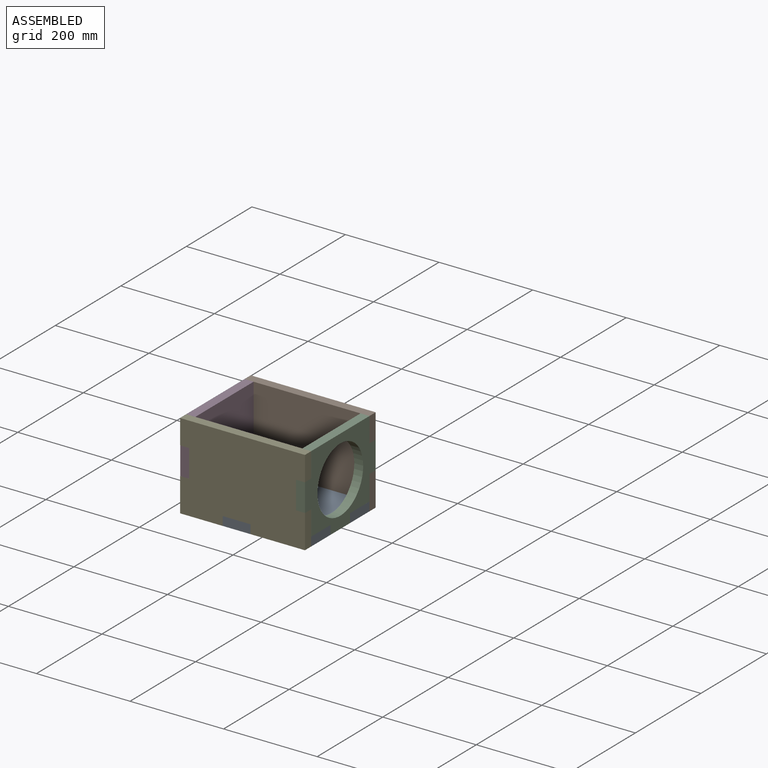
[diagram: assembled view]
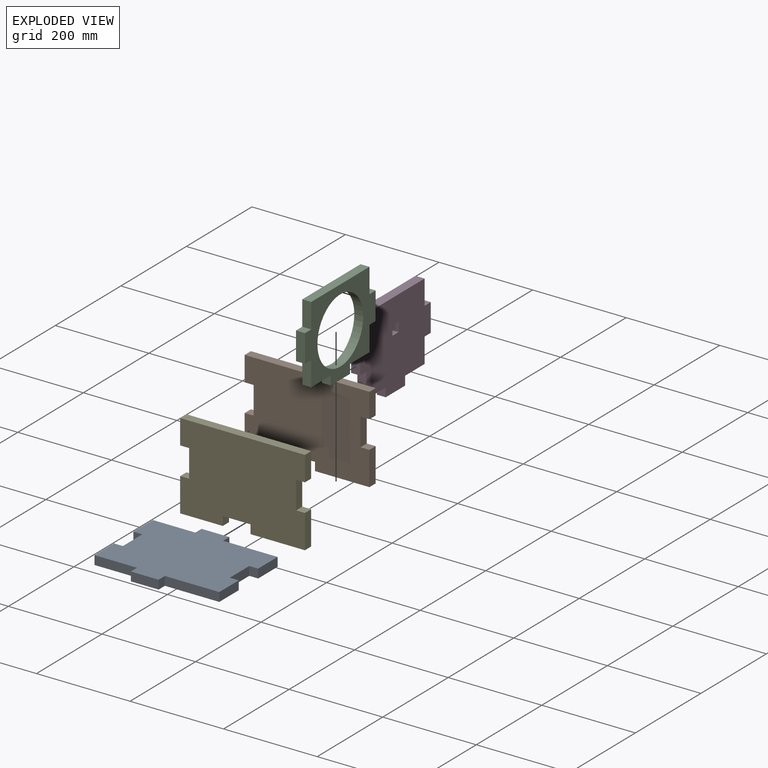
[diagram: exploded view]
GUIDED TOUR — MATED ASSEMBLY (Onshape document 8300660205ef236f21a5e171, AutoMate assembly 8300660205ef236f21a5e171_18b83a9f89c25a5f701d8ad7_d6cc774d2615e0332f5ea90b_default)

This assembly has 5 components, labeled P0..P4 below (a component is one placed occurrence of a part; the same part can appear more than once), held together by 4 mates. A mate is a constraint between two components; its type names the relative motion it leaves free:
  FASTENED — locks the two components together rigidly (no relative motion).
Axis/direction vectors are unit vectors and 'through' points are millimeter coordinates, both in the assembly's world frame.

MATES
  1. FASTENED "Fastened 1": P3 <-> P0, direction (0.000, 1.000, 0.000) through (-167.31, 15.33, -1.70) mm
  2. FASTENED "Fastened 2": P4 <-> P0, direction (-1.000, 0.000, 0.000) through (-76.29, -122.34, -1.70) mm
  3. FASTENED "Fastened 3": P1 <-> P0, direction (1.000, 0.000, 0.000) through (-76.29, 74.51, -1.70) mm
  4. FASTENED "Fastened 4": P2 <-> P0, direction (0.000, 1.000, 0.000) through (99.39, -43.98, -1.70) mm

ASSEMBLY ORDER
  1. P4 — the base component [order verified]
  2. P0 [order verified]
  3. P1 [order verified]
  4. P2 [order verified]
  5. P3 [order verified]
Order-tag legend:
  [order verified] — this step's position reverses a verified removal order: the component was checked to insert without passing through the ones already placed.

Of the 5 components, 5 carry the full construction recipe — the FeatureScript program that regenerates the part's solid from scratch; the rest are supplied as boundary geometry only.
Each toured component is shown spotlighted twice — in the assembled view, then in the exploded view, where a leader line traces a displaced component back to its assembled socket (saturated green if recipe-attached, orange if geometry-only; every other component desaturated gray) — followed by its recipe or geometry summary and the mates that hold it.
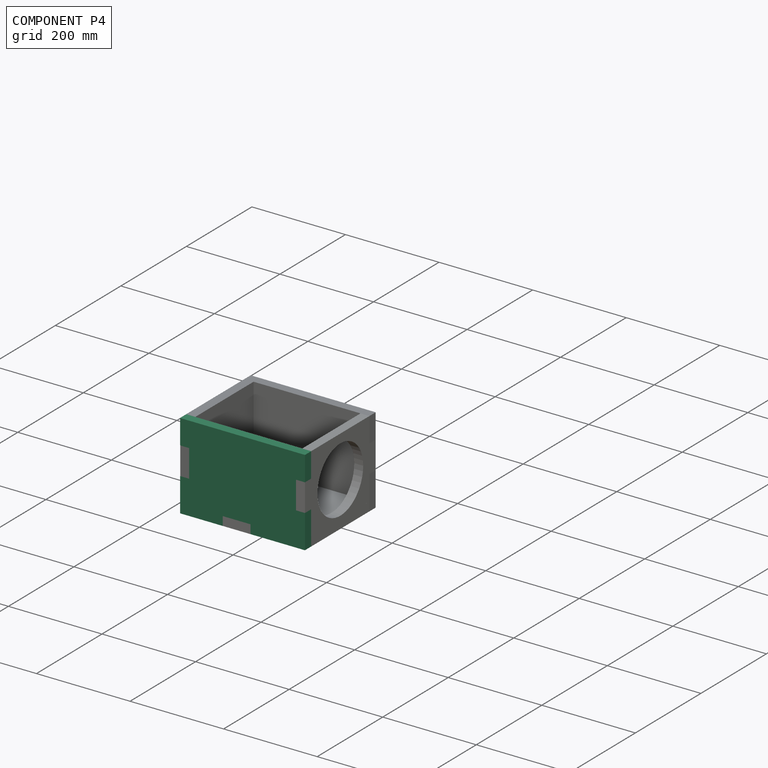
[diagram: component P4 — assembled]
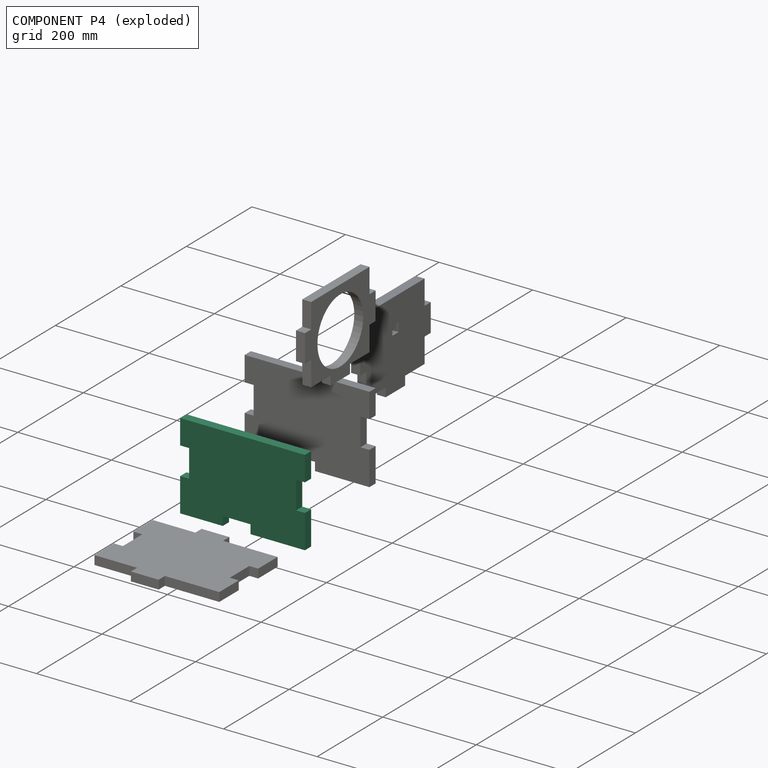
[diagram: component P4 — exploded]
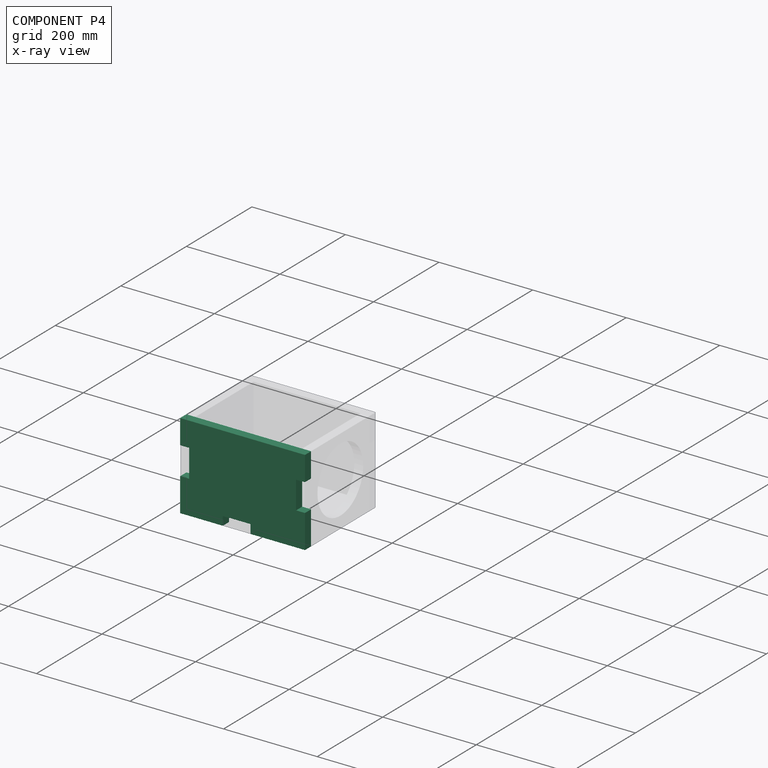
[diagram: component P4 — x-ray view]
COMPONENT P4 — same part as P1 (CADFS 00915573); its construction recipe is shown at P1.
Held by: FASTENED mate "Fastened 2" to P0.
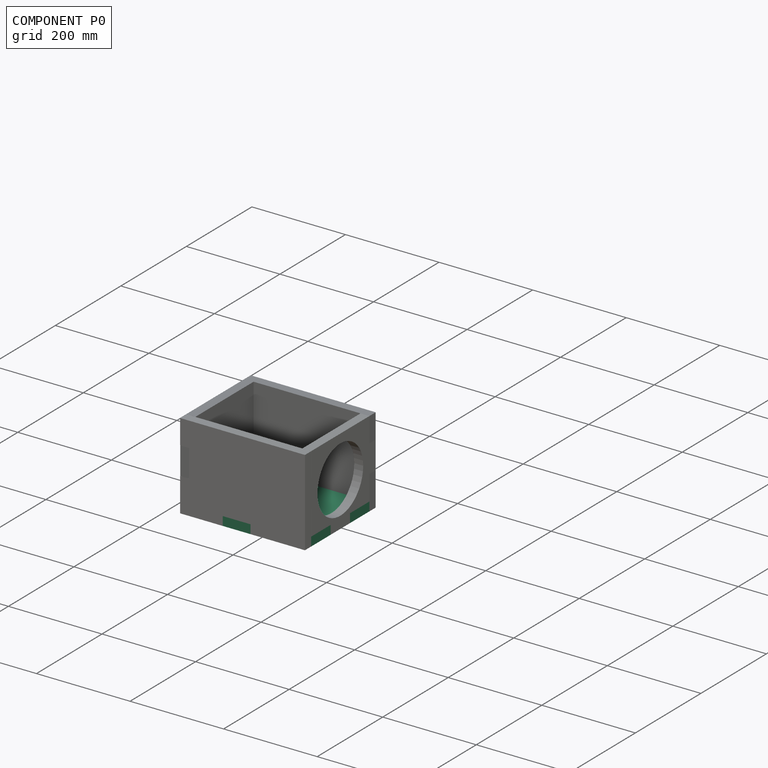
[diagram: component P0 — assembled]
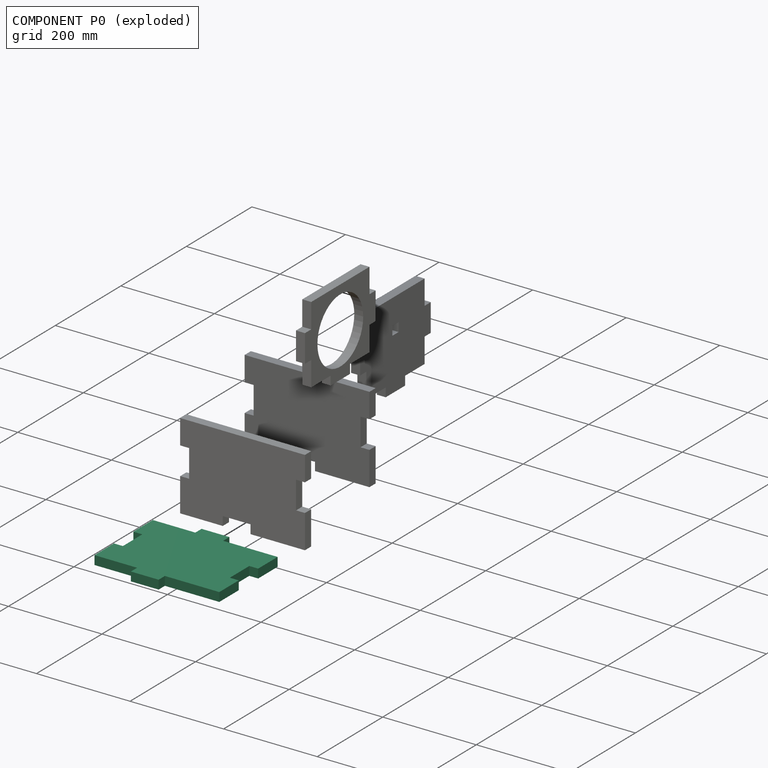
[diagram: component P0 — exploded]
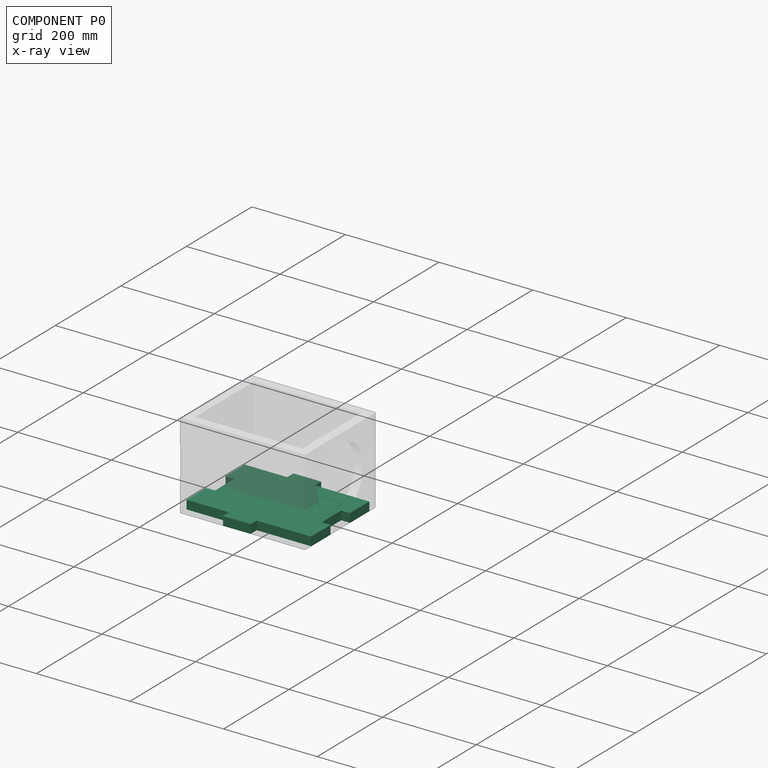
[diagram: component P0 — x-ray view]
COMPONENT P0 — recipe-attached (CADFS 00915570, mesh-verified: the recipe's output STEP matches this component's geometry to below the mesh-comparison resolution (tessellation chordal tolerance ~0.515 mm)).
Held by: FASTENED mate "Fastened 1" to P3; FASTENED mate "Fastened 2" to P4; FASTENED mate "Fastened 3" to P1; FASTENED mate "Fastened 4" to P2.
Construction recipe (FeatureScript — the CAD program that rebuilds this solid; sketch coordinates are in the units given by the * unit suffixes, e.g. mm):

FeatureScript 1511;
import(path : "onshape/std/geometry.fs", version : "1511.0");
import(path : "onshape/std/common.fs", version : "1511.0");
const mm = millimeter;
const VERTEX = EntityType.VERTEX;
const EDGE = EntityType.EDGE;
const FACE = EntityType.FACE;
const BODY = EntityType.BODY;
function v(x, y){return vector(x, y);}
function OD(order){return orderDisambiguation(order);}
function OSD(set){return originalSetDisambiguation(set);}
function TD(topology){return topologyDisambiguation(topology);}
function TDD(query){return trueDependencyDisambiguation(query);}
function sQuery(a, b, c) {return sketchEntityQuery(a, b, c);}

annotation { "Feature Type Name" : "Feature", "Feature Type Description" : "" }
export const myFeature = defineFeature(function(context is Context, id is Id, definition is map)
    precondition{}
    {
        {
            var Q0;
            Q0=qCreatedBy(makeId("Top.planeOp"),FACE);
            var sketch = newSketch(context, id + "F0", { "sketchPlane" : qUnion([Q0])});
            skPoint(sketch, "E0.middle", {"position": v(0, 0) * mm});
            skLineSegment(sketch, "E1", {"start": v(-101.6, 29.72) * mm, "end": v(-120.65, 29.72) * mm});
            skLineSegment(sketch, "E2.bottom", {"start": v(-120.65, 29.72) * mm, "end": v(-101.6, 29.72) * mm});
            skLineSegment(sketch, "E2.top", {"start": v(-120.65, 88.9) * mm, "end": v(-101.6, 88.9) * mm});
            skLineSegment(sketch, "E2.left", {"start": v(-120.65, 29.72) * mm, "end": v(-120.65, 88.9) * mm});
            skLineSegment(sketch, "E3", {"start": v(-101.6, -29.6) * mm, "end": v(-120.65, -29.6) * mm});
            skLineSegment(sketch, "E4.bottom", {"start": v(-101.6, -88.9) * mm, "end": v(-120.65, -88.9) * mm});
            skLineSegment(sketch, "E4.right", {"start": v(-120.65, -88.9) * mm, "end": v(-120.65, -29.6) * mm});
            skLineSegment(sketch, "E5.bottom", {"start": v(101.6, -88.9) * mm, "end": v(120.65, -88.9) * mm});
            skLineSegment(sketch, "E6", {"start": v(-101.6, 29.72) * mm, "end": v(-101.6, -29.6) * mm});
            skLineSegment(sketch, "E7.top", {"start": v(120.65, 88.9) * mm, "end": v(101.6, 88.9) * mm});
            skLineSegment(sketch, "E8", {"start": v(0, 107.95) * mm, "end": v(29.63, 107.95) * mm});
            skLineSegment(sketch, "E9", {"start": v(0, 107.95) * mm, "end": v(-29.63, 107.95) * mm});
            skLineSegment(sketch, "E10", {"start": v(-29.63, 107.95) * mm, "end": v(-29.63, 88.9) * mm});
            skLineSegment(sketch, "E11.bottom", {"start": v(29.63, 107.95) * mm, "end": v(-29.63, 107.95) * mm});
            skLineSegment(sketch, "E11.left", {"start": v(29.63, 107.95) * mm, "end": v(29.63, 88.9) * mm});
            skLineSegment(sketch, "E12", {"start": v(-101.6, 88.9) * mm, "end": v(-29.63, 88.9) * mm});
            skLineSegment(sketch, "E13", {"start": v(29.63, 88.9) * mm, "end": v(101.6, 88.9) * mm});
            skLineSegment(sketch, "E14", {"start": v(-29.63, -88.9) * mm, "end": v(-29.63, -107.95) * mm});
            skLineSegment(sketch, "E15.bottom", {"start": v(-29.63, -107.95) * mm, "end": v(29.63, -107.95) * mm});
            skLineSegment(sketch, "E15.left", {"start": v(-29.63, -107.95) * mm, "end": v(-29.63, -88.9) * mm});
            skLineSegment(sketch, "E15.right", {"start": v(29.63, -107.95) * mm, "end": v(29.63, -88.9) * mm});
            skLineSegment(sketch, "E16", {"start": v(-101.6, -88.9) * mm, "end": v(-29.63, -88.9) * mm});
            skLineSegment(sketch, "E17", {"start": v(29.63, -88.9) * mm, "end": v(101.6, -88.9) * mm});
            skLineSegment(sketch, "E18", {"start": v(120.65, 88.9) * mm, "end": v(146.05, 88.9) * mm});
            skLineSegment(sketch, "E19", {"start": v(146.05, 29.72) * mm, "end": v(146.05, 88.9) * mm});
            skLineSegment(sketch, "E20", {"start": v(146.05, -29.6) * mm, "end": v(146.05, -88.9) * mm});
            skLineSegment(sketch, "E21", {"start": v(146.05, -88.9) * mm, "end": v(120.65, -88.9) * mm});
            skLineSegment(sketch, "E22", {"start": v(127, 29.72) * mm, "end": v(127, -29.6) * mm});
            skLineSegment(sketch, "E23", {"start": v(127, -29.6) * mm, "end": v(146.05, -29.6) * mm});
            skLineSegment(sketch, "E24", {"start": v(127, 29.72) * mm, "end": v(146.05, 29.72) * mm});
            skSolve(sketch);
        }
        {
            var Q0;
            Q0 = qSketchRegion(id + "F0", true);
            extrude(context, id + "F1", {"entities" : qUnion([Q0]), "depth" : 19.05 * mm, "offsetDistance" : 25.4 * mm});
        }
    });
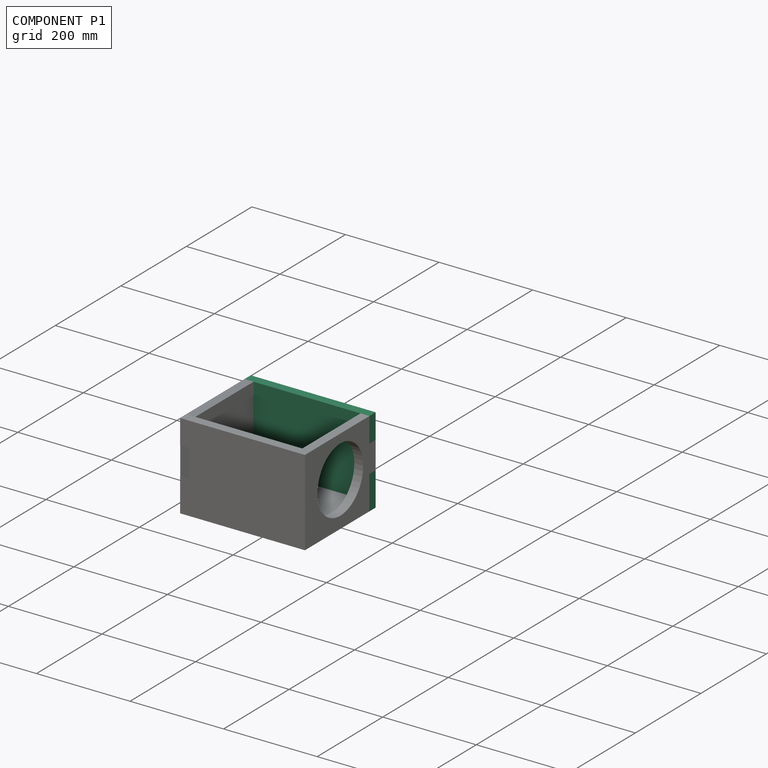
[diagram: component P1 — assembled]
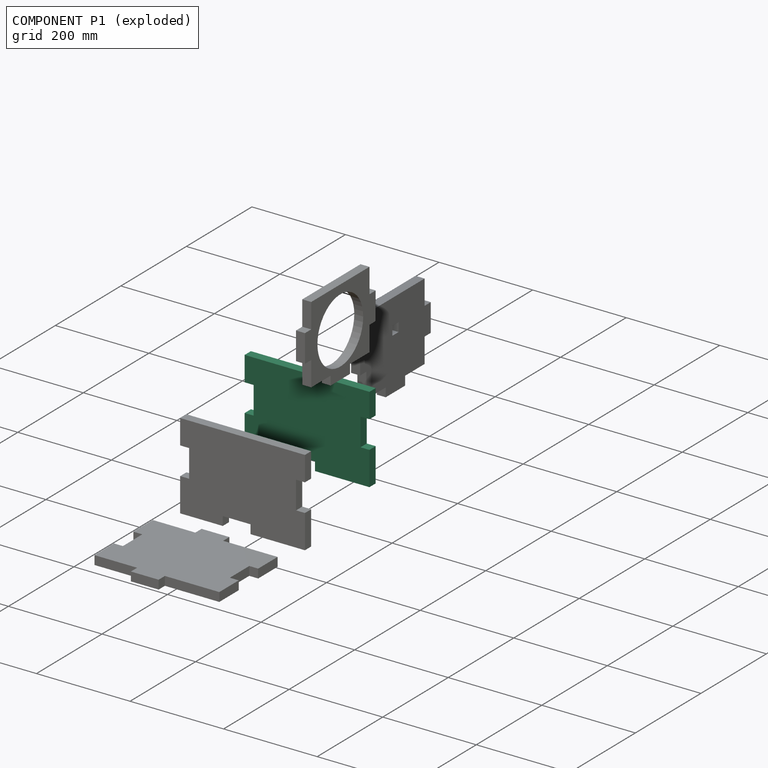
[diagram: component P1 — exploded]
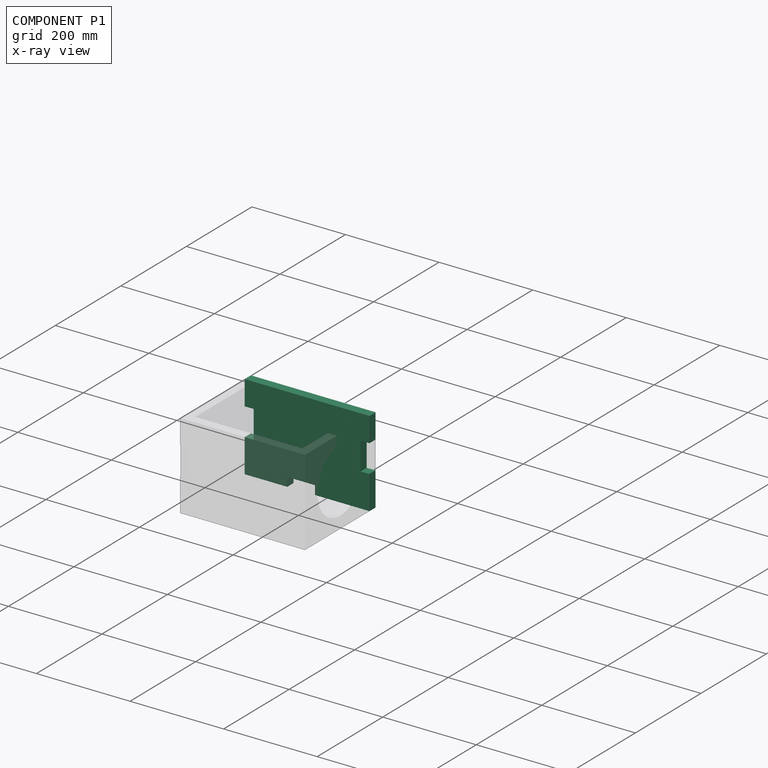
[diagram: component P1 — x-ray view]
COMPONENT P1 — recipe-attached (CADFS 00915573, mesh-verified: the recipe's output STEP matches this component's geometry to below the mesh-comparison resolution (tessellation chordal tolerance ~0.487 mm)).
Held by: FASTENED mate "Fastened 3" to P0.
Construction recipe (FeatureScript — the CAD program that rebuilds this solid; sketch coordinates are in the units given by the * unit suffixes, e.g. mm):

FeatureScript 1511;
import(path : "onshape/std/geometry.fs", version : "1511.0");
import(path : "onshape/std/common.fs", version : "1511.0");
const mm = millimeter;
const VERTEX = EntityType.VERTEX;
const EDGE = EntityType.EDGE;
const FACE = EntityType.FACE;
const BODY = EntityType.BODY;
function v(x, y){return vector(x, y);}
function OD(order){return orderDisambiguation(order);}
function OSD(set){return originalSetDisambiguation(set);}
function TD(topology){return topologyDisambiguation(topology);}
function TDD(query){return trueDependencyDisambiguation(query);}
function sQuery(a, b, c) {return sketchEntityQuery(a, b, c);}

annotation { "Feature Type Name" : "Feature", "Feature Type Description" : "" }
export const myFeature = defineFeature(function(context is Context, id is Id, definition is map)
    precondition{}
    {
        {
            var Q0;
            Q0=qCreatedBy(makeId("Front.planeOp"),FACE);
            var sketch = newSketch(context, id + "F0", { "sketchPlane" : qUnion([Q0])});
            skPoint(sketch, "E0.middle", {"position": v(0, 0) * mm});
            skLineSegment(sketch, "E1", {"start": v(-133.35, 0) * mm, "end": v(-133.35, 29.63) * mm});
            skLineSegment(sketch, "E2", {"start": v(-133.35, 0) * mm, "end": v(-133.35, -29.63) * mm});
            skLineSegment(sketch, "E3", {"start": v(-133.35, 29.63) * mm, "end": v(-152.4, 29.63) * mm});
            skLineSegment(sketch, "E4", {"start": v(-133.35, -29.63) * mm, "end": v(-152.4, -29.63) * mm});
            skLineSegment(sketch, "E5", {"start": v(-152.4, -29.63) * mm, "end": v(-152.4, -82.55) * mm});
            skLineSegment(sketch, "E6", {"start": v(-61.38, -82.55) * mm, "end": v(-61.38, -101.6) * mm});
            skLineSegment(sketch, "E7", {"start": v(-61.38, -101.6) * mm, "end": v(-152.4, -101.6) * mm});
            skLineSegment(sketch, "E8", {"start": v(-152.4, -101.6) * mm, "end": v(-152.4, -29.63) * mm});
            skLineSegment(sketch, "E9", {"start": v(-61.38, -82.55) * mm, "end": v(-2.12, -82.55) * mm});
            skLineSegment(sketch, "E10", {"start": v(-2.12, -82.55) * mm, "end": v(-2.12, -101.6) * mm});
            skLineSegment(sketch, "E11", {"start": v(-152.4, 29.63) * mm, "end": v(-152.4, 82.55) * mm});
            skLineSegment(sketch, "E12.right", {"start": v(95.25, -29.63) * mm, "end": v(95.25, 29.63) * mm});
            skLineSegment(sketch, "E13.left", {"start": v(114.3, 82.55) * mm, "end": v(114.3, 29.63) * mm});
            skLineSegment(sketch, "E14.right", {"start": v(114.3, -101.6) * mm, "end": v(114.3, -29.63) * mm});
            skLineSegment(sketch, "E15", {"start": v(-2.12, -101.6) * mm, "end": v(114.3, -101.6) * mm});
            skLineSegment(sketch, "E16", {"start": v(95.25, -29.63) * mm, "end": v(114.3, -29.63) * mm});
            skLineSegment(sketch, "E17", {"start": v(95.25, 29.63) * mm, "end": v(114.3, 29.63) * mm});
            skLineSegment(sketch, "E18", {"start": v(114.3, 82.55) * mm, "end": v(-152.4, 82.55) * mm});
            skSolve(sketch);
        }
        {
            var Q0;
            Q0=makeQuery(id+"F0.imprint","IMPRINT",FACE,{"disambiguationData":[TD([[makeQuery(id+"F0.imprint","IMPRINT",EDGE,{"derivedFrom":sQuery(id+"F0.wireOp",EDGE,"E1")}),-1.0]])]});
            extrude(context, id + "F1", {"entities" : qUnion([Q0]), "depth" : 19.05 * mm, "offsetDistance" : 25.4 * mm});
        }
    });
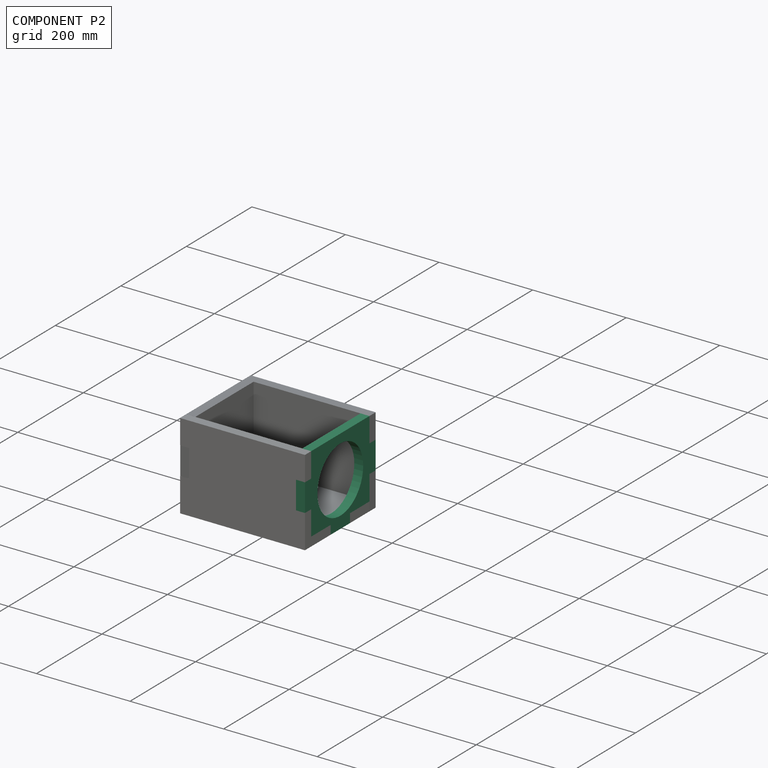
[diagram: component P2 — assembled]
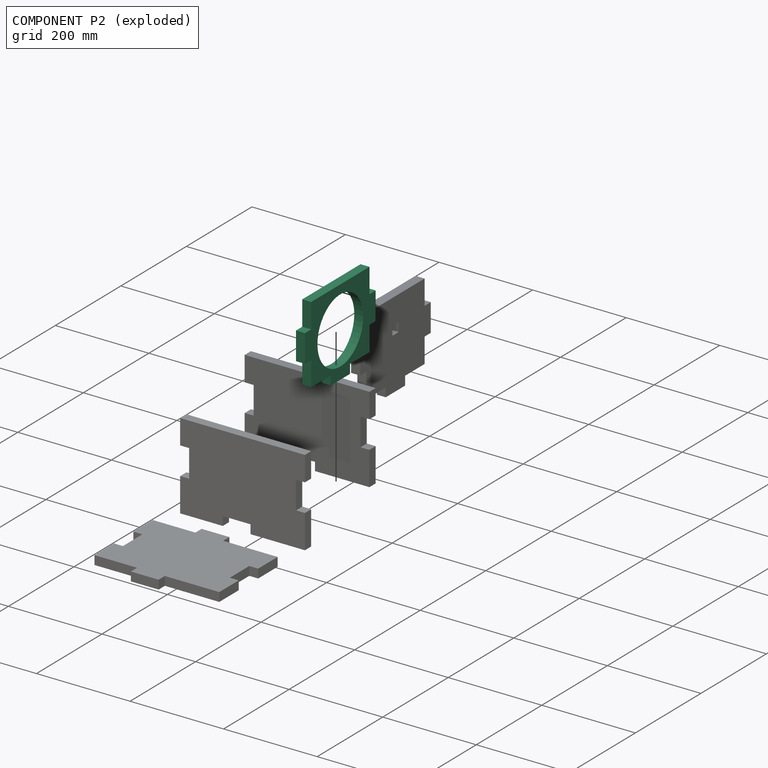
[diagram: component P2 — exploded]
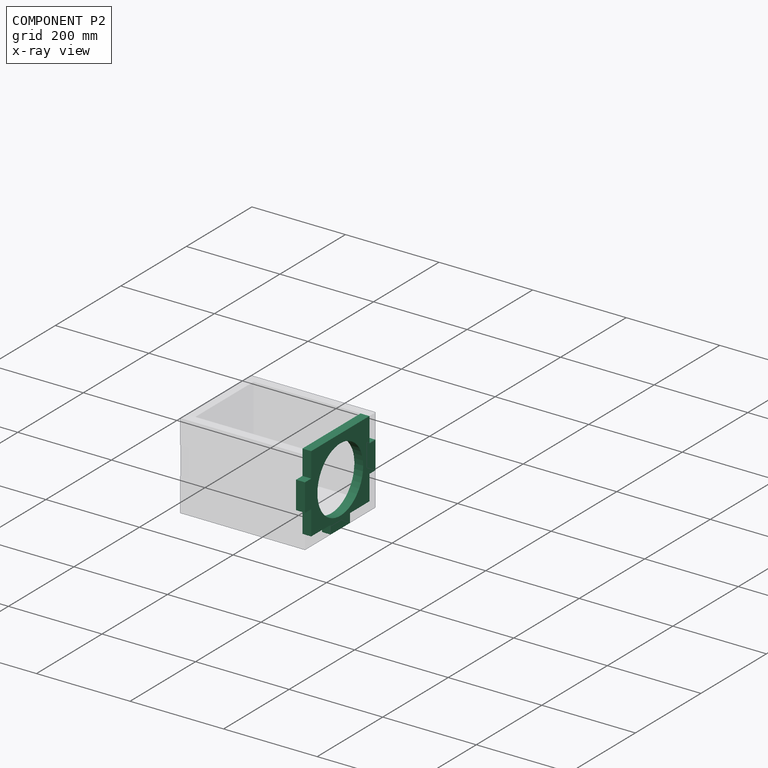
[diagram: component P2 — x-ray view]
COMPONENT P2 — recipe-attached (CADFS 00915572, mesh-verified: the recipe's output STEP matches this component's geometry to below the mesh-comparison resolution (tessellation chordal tolerance ~0.427 mm)).
Held by: FASTENED mate "Fastened 4" to P0.
Construction recipe (FeatureScript — the CAD program that rebuilds this solid; sketch coordinates are in the units given by the * unit suffixes, e.g. mm):

FeatureScript 1511;
import(path : "onshape/std/geometry.fs", version : "1511.0");
import(path : "onshape/std/common.fs", version : "1511.0");
const mm = millimeter;
const VERTEX = EntityType.VERTEX;
const EDGE = EntityType.EDGE;
const FACE = EntityType.FACE;
const BODY = EntityType.BODY;
function v(x, y){return vector(x, y);}
function OD(order){return orderDisambiguation(order);}
function OSD(set){return originalSetDisambiguation(set);}
function TD(topology){return topologyDisambiguation(topology);}
function TDD(query){return trueDependencyDisambiguation(query);}
function sQuery(a, b, c) {return sketchEntityQuery(a, b, c);}

annotation { "Feature Type Name" : "Feature", "Feature Type Description" : "" }
export const myFeature = defineFeature(function(context is Context, id is Id, definition is map)
    precondition{}
    {
        {
            var Q0;
            Q0=qCreatedBy(makeId("Right.planeOp"),FACE);
            var sketch = newSketch(context, id + "F0", { "sketchPlane" : qUnion([Q0])});
            skLineSegment(sketch, "E0.bottom", {"start": v(-88.9, 82.55) * mm, "end": v(88.9, 82.55) * mm});
            skPoint(sketch, "E0.middle", {"position": v(0, 0) * mm});
            skLineSegment(sketch, "E1", {"start": v(0, -101.6) * mm, "end": v(29.63, -101.6) * mm});
            skLineSegment(sketch, "E2", {"start": v(0, -101.6) * mm, "end": v(-29.63, -101.6) * mm});
            skLineSegment(sketch, "E3", {"start": v(-29.63, -101.6) * mm, "end": v(-29.63, -82.55) * mm});
            skLineSegment(sketch, "E4.top", {"start": v(-29.63, -101.6) * mm, "end": v(29.63, -101.6) * mm});
            skLineSegment(sketch, "E4.left", {"start": v(-29.63, -82.55) * mm, "end": v(-29.63, -101.6) * mm});
            skLineSegment(sketch, "E4.right", {"start": v(29.63, -82.55) * mm, "end": v(29.63, -101.6) * mm});
            skLineSegment(sketch, "E5", {"start": v(88.9, -82.55) * mm, "end": v(29.63, -82.55) * mm});
            skLineSegment(sketch, "E6", {"start": v(-29.63, -82.55) * mm, "end": v(-88.9, -82.55) * mm});
            skLineSegment(sketch, "E7", {"start": v(-107.95, 0) * mm, "end": v(-107.95, 29.63) * mm});
            skLineSegment(sketch, "E8", {"start": v(-107.95, 0) * mm, "end": v(-107.95, -29.63) * mm});
            skLineSegment(sketch, "E9", {"start": v(-107.95, -29.63) * mm, "end": v(-88.9, -29.63) * mm});
            skLineSegment(sketch, "E10.bottom", {"start": v(-88.9, -29.63) * mm, "end": v(-107.95, -29.63) * mm});
            skLineSegment(sketch, "E10.top", {"start": v(-88.9, 29.63) * mm, "end": v(-107.95, 29.63) * mm});
            skLineSegment(sketch, "E10.right", {"start": v(-107.95, -29.63) * mm, "end": v(-107.95, 29.63) * mm});
            skLineSegment(sketch, "E11", {"start": v(-88.9, 29.63) * mm, "end": v(-88.9, 82.55) * mm});
            skLineSegment(sketch, "E12", {"start": v(-88.9, -29.63) * mm, "end": v(-88.9, -82.55) * mm});
            skLineSegment(sketch, "E13", {"start": v(107.95, 0) * mm, "end": v(107.95, 29.63) * mm});
            skLineSegment(sketch, "E14", {"start": v(107.95, 0) * mm, "end": v(107.95, -29.63) * mm});
            skLineSegment(sketch, "E15", {"start": v(107.95, -29.63) * mm, "end": v(88.9, -29.63) * mm});
            skLineSegment(sketch, "E16.bottom", {"start": v(88.9, -29.63) * mm, "end": v(107.95, -29.63) * mm});
            skLineSegment(sketch, "E16.top", {"start": v(88.9, 29.63) * mm, "end": v(107.95, 29.63) * mm});
            skLineSegment(sketch, "E16.right", {"start": v(107.95, -29.63) * mm, "end": v(107.95, 29.63) * mm});
            skLineSegment(sketch, "E17", {"start": v(88.9, -82.55) * mm, "end": v(88.9, -29.63) * mm});
            skLineSegment(sketch, "E18", {"start": v(88.9, 29.63) * mm, "end": v(88.9, 82.55) * mm});
            skCircle(sketch, "E19", {"center": v(0, -6.35) * mm, "radius": 69.85 * mm});
            skSolve(sketch);
        }
        {
            var Q0;
            Q0=makeQuery(id+"F0.imprint","IMPRINT",FACE,{"disambiguationData":[TD([[makeQuery(id+"F0.imprint","IMPRINT",EDGE,{"derivedFrom":sQuery(id+"F0.wireOp",EDGE,"E0.bottom")}),-1.0]])]});
            extrude(context, id + "F1", {"entities" : qUnion([Q0]), "depth" : 19.05 * mm, "offsetDistance" : 25.4 * mm});
        }
    });
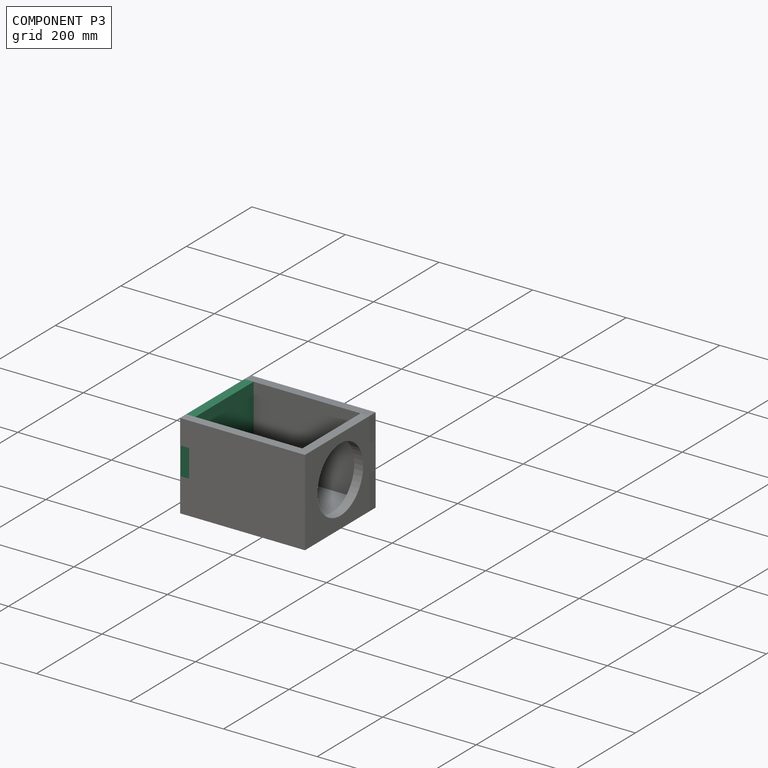
[diagram: component P3 — assembled]
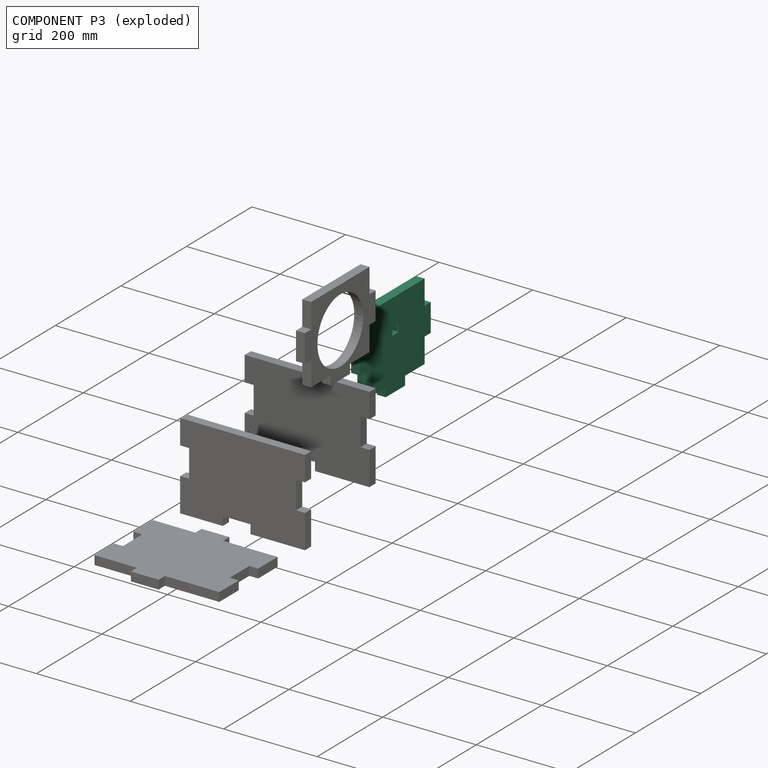
[diagram: component P3 — exploded]
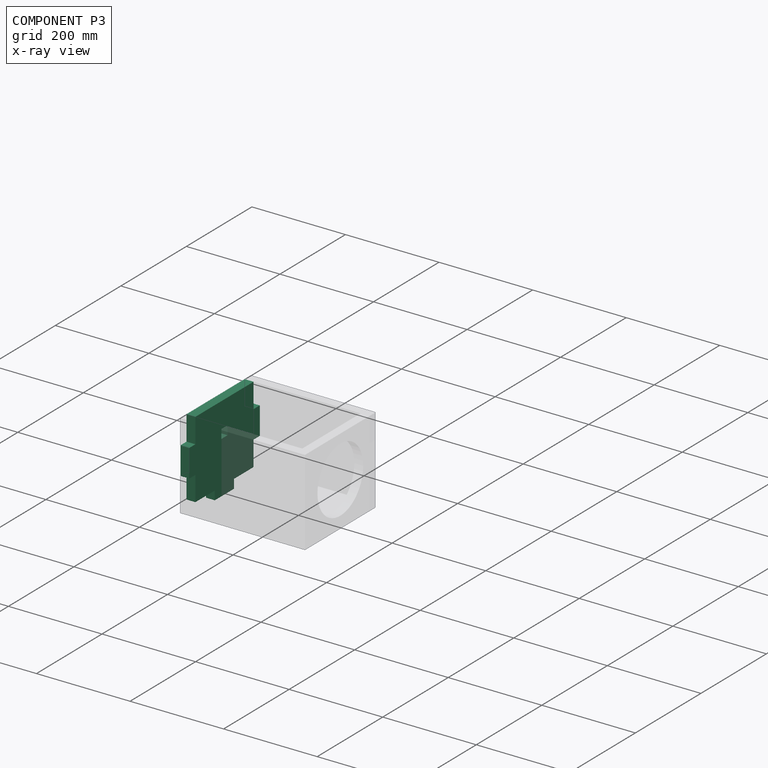
[diagram: component P3 — x-ray view]
COMPONENT P3 — recipe-attached (CADFS 00915571, mesh-verified: the recipe's output STEP matches this component's geometry to below the mesh-comparison resolution (tessellation chordal tolerance ~0.427 mm)).
Held by: FASTENED mate "Fastened 1" to P0.
Construction recipe (FeatureScript — the CAD program that rebuilds this solid; sketch coordinates are in the units given by the * unit suffixes, e.g. mm):

FeatureScript 1511;
import(path : "onshape/std/geometry.fs", version : "1511.0");
import(path : "onshape/std/common.fs", version : "1511.0");
const mm = millimeter;
const VERTEX = EntityType.VERTEX;
const EDGE = EntityType.EDGE;
const FACE = EntityType.FACE;
const BODY = EntityType.BODY;
function v(x, y){return vector(x, y);}
function OD(order){return orderDisambiguation(order);}
function OSD(set){return originalSetDisambiguation(set);}
function TD(topology){return topologyDisambiguation(topology);}
function TDD(query){return trueDependencyDisambiguation(query);}
function sQuery(a, b, c) {return sketchEntityQuery(a, b, c);}

annotation { "Feature Type Name" : "Feature", "Feature Type Description" : "" }
export const myFeature = defineFeature(function(context is Context, id is Id, definition is map)
    precondition{}
    {
        {
            var Q0;
            Q0=qCreatedBy(makeId("Right.planeOp"),FACE);
            var sketch = newSketch(context, id + "F0", { "sketchPlane" : qUnion([Q0])});
            skLineSegment(sketch, "E0.bottom", {"start": v(-88.9, 82.55) * mm, "end": v(88.9, 82.55) * mm});
            skPoint(sketch, "E0.middle", {"position": v(0, 0) * mm});
            skLineSegment(sketch, "E1", {"start": v(0, -101.6) * mm, "end": v(29.63, -101.6) * mm});
            skLineSegment(sketch, "E2", {"start": v(0, -101.6) * mm, "end": v(-29.63, -101.6) * mm});
            skLineSegment(sketch, "E3", {"start": v(-29.63, -101.6) * mm, "end": v(-29.63, -82.55) * mm});
            skLineSegment(sketch, "E4.top", {"start": v(-29.63, -101.6) * mm, "end": v(29.63, -101.6) * mm});
            skLineSegment(sketch, "E4.left", {"start": v(-29.63, -82.55) * mm, "end": v(-29.63, -101.6) * mm});
            skLineSegment(sketch, "E4.right", {"start": v(29.63, -82.55) * mm, "end": v(29.63, -101.6) * mm});
            skLineSegment(sketch, "E5", {"start": v(88.9, -82.55) * mm, "end": v(29.63, -82.55) * mm});
            skLineSegment(sketch, "E6", {"start": v(-29.63, -82.55) * mm, "end": v(-88.9, -82.55) * mm});
            skLineSegment(sketch, "E7.bottom", {"start": v(-9.53, 28.57) * mm, "end": v(9.53, 28.57) * mm});
            skLineSegment(sketch, "E7.top", {"start": v(-9.53, 9.52) * mm, "end": v(9.52, 9.52) * mm});
            skLineSegment(sketch, "E7.left", {"start": v(-9.53, 28.57) * mm, "end": v(-9.53, 9.52) * mm});
            skLineSegment(sketch, "E7.right", {"start": v(9.53, 28.57) * mm, "end": v(9.52, 9.52) * mm});
            skPoint(sketch, "E7.middle", {"position": v(0, 19.05) * mm});
            skLineSegment(sketch, "E8", {"start": v(-107.95, 0) * mm, "end": v(-107.95, 29.63) * mm});
            skLineSegment(sketch, "E9", {"start": v(-107.95, 0) * mm, "end": v(-107.95, -29.63) * mm});
            skLineSegment(sketch, "E10", {"start": v(-107.95, -29.63) * mm, "end": v(-88.9, -29.63) * mm});
            skLineSegment(sketch, "E11.bottom", {"start": v(-88.9, -29.63) * mm, "end": v(-107.95, -29.63) * mm});
            skLineSegment(sketch, "E11.top", {"start": v(-88.9, 29.63) * mm, "end": v(-107.95, 29.63) * mm});
            skLineSegment(sketch, "E11.right", {"start": v(-107.95, -29.63) * mm, "end": v(-107.95, 29.63) * mm});
            skLineSegment(sketch, "E12", {"start": v(-88.9, 29.63) * mm, "end": v(-88.9, 82.55) * mm});
            skLineSegment(sketch, "E13", {"start": v(-88.9, -29.63) * mm, "end": v(-88.9, -82.55) * mm});
            skLineSegment(sketch, "E14", {"start": v(107.95, 0) * mm, "end": v(107.95, 29.63) * mm});
            skLineSegment(sketch, "E15", {"start": v(107.95, 0) * mm, "end": v(107.95, -29.63) * mm});
            skLineSegment(sketch, "E16", {"start": v(107.95, -29.63) * mm, "end": v(88.9, -29.63) * mm});
            skLineSegment(sketch, "E17.bottom", {"start": v(88.9, -29.63) * mm, "end": v(107.95, -29.63) * mm});
            skLineSegment(sketch, "E17.top", {"start": v(88.9, 29.63) * mm, "end": v(107.95, 29.63) * mm});
            skLineSegment(sketch, "E17.right", {"start": v(107.95, -29.63) * mm, "end": v(107.95, 29.63) * mm});
            skLineSegment(sketch, "E18", {"start": v(88.9, -82.55) * mm, "end": v(88.9, -29.63) * mm});
            skLineSegment(sketch, "E19", {"start": v(88.9, 29.63) * mm, "end": v(88.9, 82.55) * mm});
            skSolve(sketch);
        }
        {
            var Q0;
            Q0=makeQuery(id+"F0.imprint","IMPRINT",FACE,{"disambiguationData":[TD([[makeQuery(id+"F0.imprint","IMPRINT",EDGE,{"derivedFrom":sQuery(id+"F0.wireOp",EDGE,"E0.bottom")}),-1.0]])]});
            extrude(context, id + "F1", {"entities" : qUnion([Q0]), "depth" : 19.05 * mm, "offsetDistance" : 25.4 * mm});
        }
    });
PROVENANCE & LICENSES
Assembly (occurrences, transforms, mates, per-part STEP geometry): AutoMate dataset, Zenodo record 7776208, CC0.
Construction recipes: CADFS (HuggingFace VladPyatov/CADFS, CC-BY-4.0, layered over the ABC dataset), FeatureScript reconstruction programs keyed by ABC model id.
Join: ABC meta listings map ABC model id -> Onshape documentId; within a shared document, parts are matched by geometric signature (bounding-box dims + volume at 0.1% relative tolerance, exact B-rep face/solid counts).
Verification: 5 of this assembly's 5 components carry a recipe attachment, and every attachment is mesh-verified: the CADFS STEP and the AutoMate member STEP were compared as meshes in their shared local frame (symmetric sampled-point-to-mesh distance); worst across the 5 attachments: below the mesh-comparison resolution (tessellation chordal tolerance ~0.515 mm) on a 344 mm part.
Renders: orthographic iso camera (az 35 / el 25); the floor grid conveys scale (grid pitch printed in each image; no ruler). In the exploded view each component is displaced by its stored offset vector: the offsets alone carry the explosion direction (mate normal/axis signs are not orientation cues and do not encode it), and separation distances are assigned per mate-chain, not proportionally to assembly-order depth.
